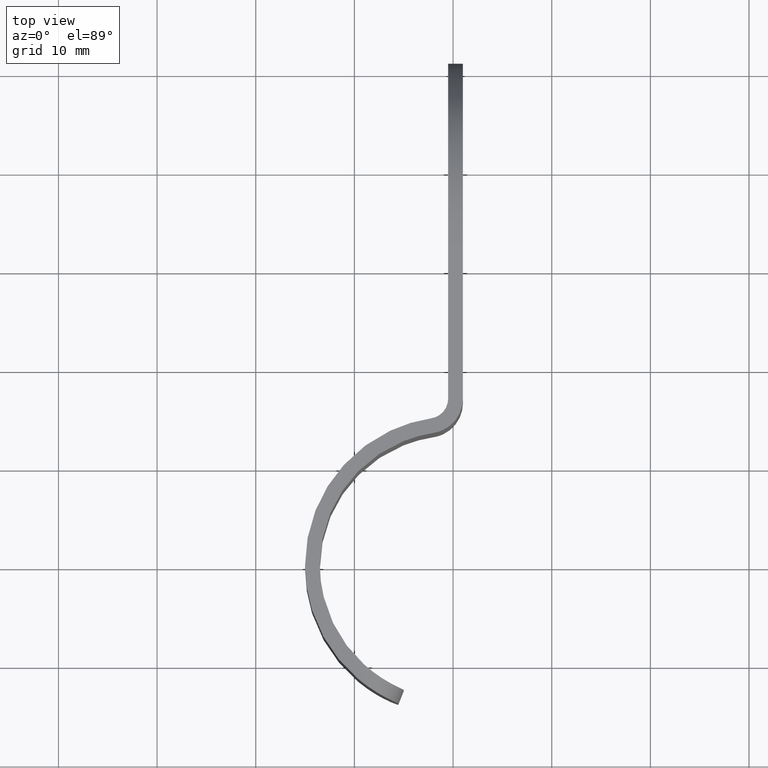
[diagram: clean part render]
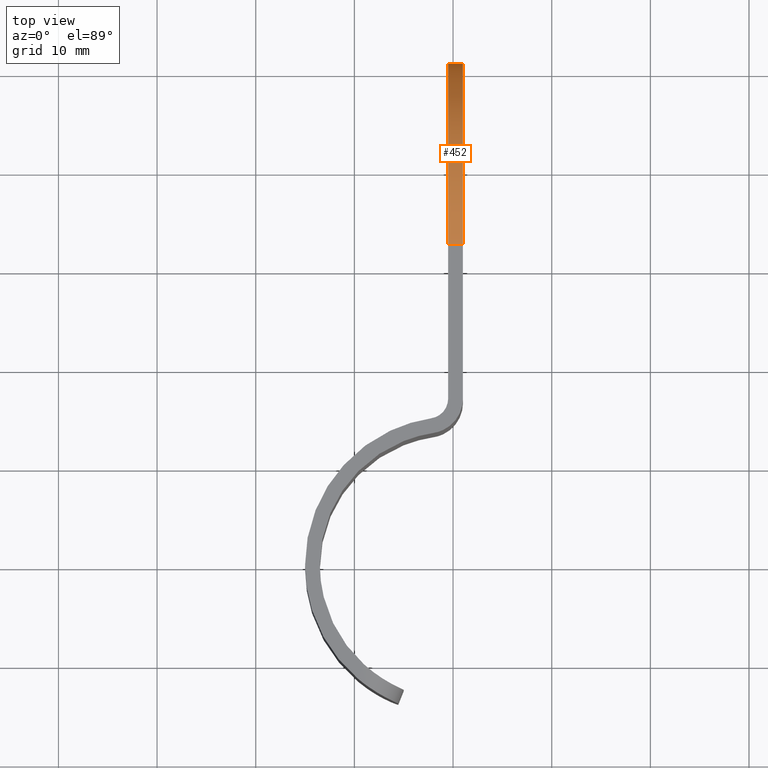
[diagram: same view with one face highlighted and labeled with its STEP entity id]
A machine part, top view. The second image highlights one B-rep face of the part: STEP entity #452.
In plain terms, the highlighted cylindrical surface (partial cylindrical patch) has radius 16 mm, axis along (1, 0, 0).
Its self-contained STEP definition (entity closure, byte-faithful):
#10 = ORIENTED_EDGE ( 'NONE', *, *, #167, .T. ) ;
#15 = ORIENTED_EDGE ( 'NONE', *, *, #588, .T. ) ;
#16 = CARTESIAN_POINT ( 'NONE',  ( -0.4999999830687073000, 32.36721305702062100, 15.78190812074337000 ) ) ;
#30 = LINE ( 'NONE', #62, #490 ) ;
#31 = CARTESIAN_POINT ( 'NONE',  ( 1.001206748977360400, 34.99996372284798700, 0.0000000000000000000 ) ) ;
#37 = CARTESIAN_POINT ( 'NONE',  ( 1.001206748977360400, 32.36721305702062100, 15.78190812074337000 ) ) ;
#39 = AXIS2_PLACEMENT_3D ( 'NONE', #31, #389, #726 ) ;
#49 = ORIENTED_EDGE ( 'NONE', *, *, #397, .F. ) ;
#62 = CARTESIAN_POINT ( 'NONE',  ( -15.00000000000002300, 32.36721305702062100, 15.78190812074337000 ) ) ;
#87 = DIRECTION ( 'NONE',  ( -1.000000000000000000, 0.0000000000000000000, 0.0000000000000000000 ) ) ;
#115 = CARTESIAN_POINT ( 'NONE',  ( 1.001206748977360400, 50.99996372284798700, 0.0000000000000000000 ) ) ;
#129 = CARTESIAN_POINT ( 'NONE',  ( 1.001206748977360400, 50.99996372284798700, 0.0000000000000000000 ) ) ;
#136 = CARTESIAN_POINT ( 'NONE',  ( -0.4999999830687073000, 50.99996372284798700, 0.0000000000000000000 ) ) ;
#167 = EDGE_CURVE ( 'NONE', #618, #716, #708, .T. ) ;
#229 = DIRECTION ( 'NONE',  ( 0.0000000000000000000, 0.0000000000000000000, -1.000000000000000000 ) ) ;
#323 = VERTEX_POINT ( 'NONE', #37 ) ;
#330 = CIRCLE ( 'NONE', #625, 16.00000000000000000 ) ;
#346 = DIRECTION ( 'NONE',  ( 1.000000000000000000, -0.0000000000000000000, -0.0000000000000000000 ) ) ;
#369 = EDGE_LOOP ( 'NONE', ( #49, #10, #623, #15 ) ) ;
#386 = VECTOR ( 'NONE', #533, 1000.000000000000000 ) ;
#389 = DIRECTION ( 'NONE',  ( 1.000000000000000000, -0.0000000000000000000, -0.0000000000000000000 ) ) ;
#397 = EDGE_CURVE ( 'NONE', #618, #323, #583, .T. ) ;
#398 = AXIS2_PLACEMENT_3D ( 'NONE', #472, #622, #229 ) ;
#452 = ADVANCED_FACE ( 'NONE', ( #719 ), #548, .T. ) ;
#472 = CARTESIAN_POINT ( 'NONE',  ( -2.499999983068716100, 34.99996372284798700, 0.0000000000000000000 ) ) ;
#490 = VECTOR ( 'NONE', #346, 1000.000000000000000 ) ;
#496 = CARTESIAN_POINT ( 'NONE',  ( -0.4999999830687073000, 34.99996372284798700, 0.0000000000000000000 ) ) ;
#533 = DIRECTION ( 'NONE',  ( -1.000000000000000000, 0.0000000000000000000, 0.0000000000000000000 ) ) ;
#548 = CYLINDRICAL_SURFACE ( 'NONE', #398, 16.00000000000000000 ) ;
#583 = CIRCLE ( 'NONE', #39, 16.00000000000000000 ) ;
#588 = EDGE_CURVE ( 'NONE', #679, #323, #30, .T. ) ;
#610 = EDGE_CURVE ( 'NONE', #679, #716, #330, .T. ) ;
#618 = VERTEX_POINT ( 'NONE', #115 ) ;
#622 = DIRECTION ( 'NONE',  ( 1.000000000000000000, 0.0000000000000000000, -0.0000000000000000000 ) ) ;
#623 = ORIENTED_EDGE ( 'NONE', *, *, #610, .F. ) ;
#625 = AXIS2_PLACEMENT_3D ( 'NONE', #496, #87, #733 ) ;
#679 = VERTEX_POINT ( 'NONE', #16 ) ;
#708 = LINE ( 'NONE', #129, #386 ) ;
#716 = VERTEX_POINT ( 'NONE', #136 ) ;
#719 = FACE_OUTER_BOUND ( 'NONE', #369, .T. ) ;
#726 = DIRECTION ( 'NONE',  ( 0.0000000000000000000, 0.0000000000000000000, 1.000000000000000000 ) ) ;
#733 = DIRECTION ( 'NONE',  ( 0.0000000000000000000, 0.0000000000000000000, 1.000000000000000000 ) ) ;